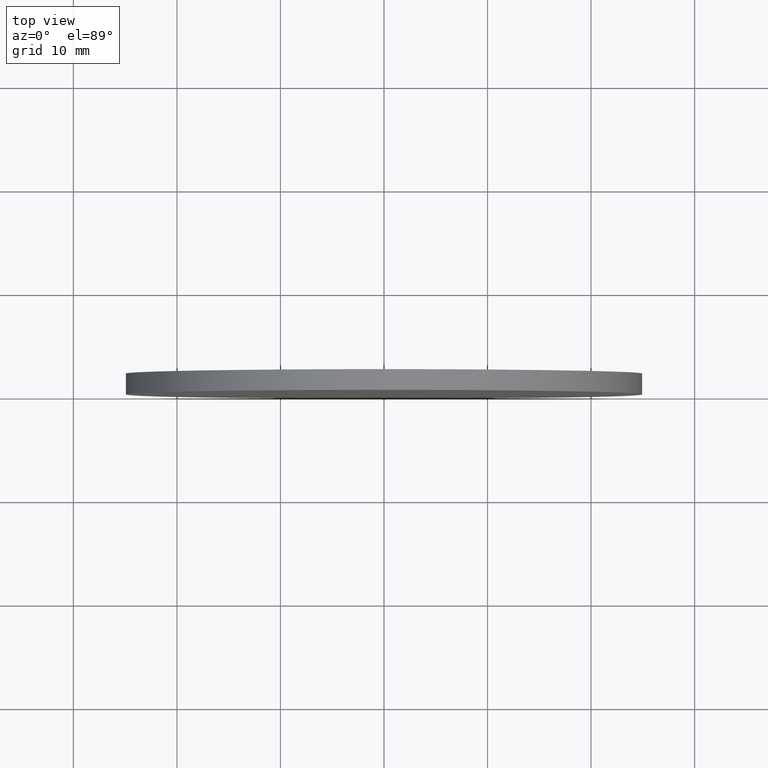
[diagram: clean part render]
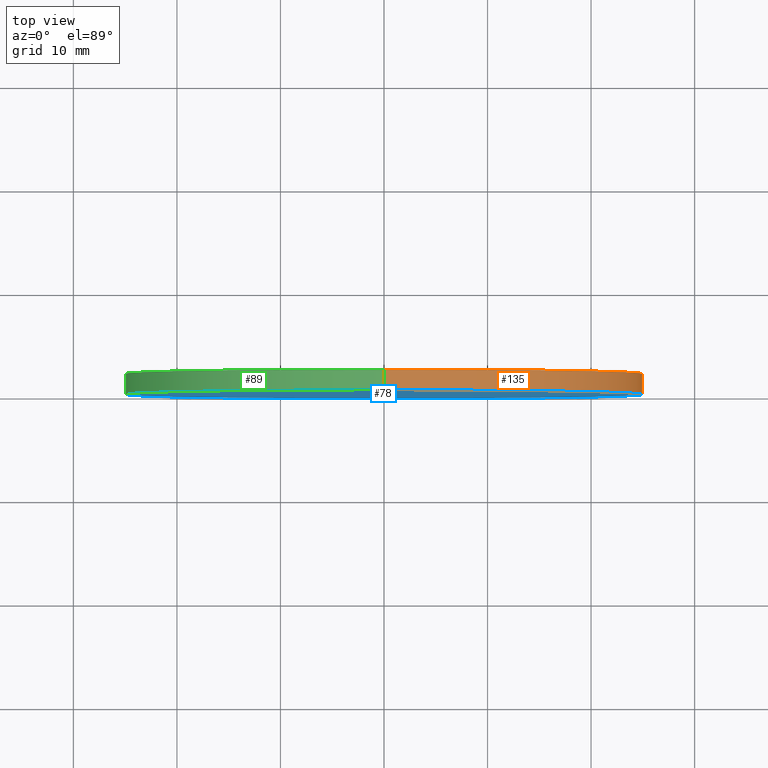
[diagram: same view with three faces highlighted in distinct colors, each labeled with its STEP entity id]
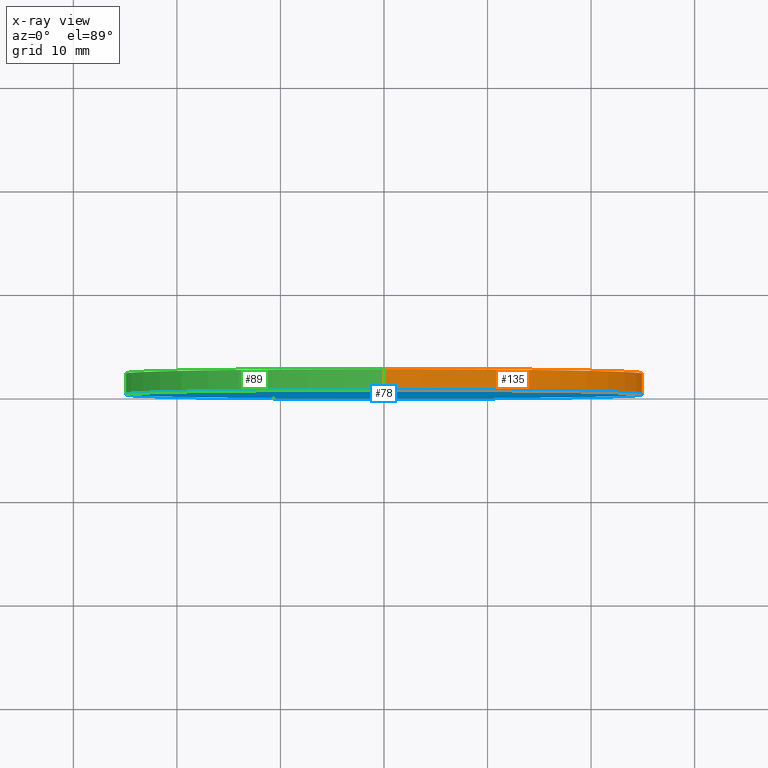
[diagram: x-ray of the same camera — body ghosted, the three highlighted faces saturated]
A machine part, top view with three faces highlighted in distinct colors.
The next image is the same camera in x-ray (body ghosted, the three faces saturated) — at least one of them is partly hidden behind the body in this view.
Their STEP definitions:

[orange] entity #135 — the highlighted cylindrical surface (partial cylindrical patch) has radius 25 mm, axis along (-0, -1, -0).
#5 = LINE ( 'NONE', #45, #126 ) ;
#8 = CARTESIAN_POINT ( 'NONE',  ( 0.0000000000000000000, 0.0000000000000000000, 0.0000000000000000000 ) ) ;
#9 = CARTESIAN_POINT ( 'NONE',  ( 0.0000000000000000000, 2.000000000000000000, -25.00000000000000000 ) ) ;
#16 = EDGE_CURVE ( 'NONE', #60, #134, #116, .T. ) ;
#18 = VERTEX_POINT ( 'NONE', #25 ) ;
#19 = CARTESIAN_POINT ( 'NONE',  ( 0.0000000000000000000, 2.000000000000000000, -25.00000000000000000 ) ) ;
#24 = EDGE_CURVE ( 'NONE', #134, #18, #75, .T. ) ;
#25 = CARTESIAN_POINT ( 'NONE',  ( 0.0000000000000000000, 0.0000000000000000000, -25.00000000000000000 ) ) ;
#26 = AXIS2_PLACEMENT_3D ( 'NONE', #71, #55, #97 ) ;
#29 = DIRECTION ( 'NONE',  ( 0.0000000000000000000, 1.000000000000000000, 0.0000000000000000000 ) ) ;
#35 = CARTESIAN_POINT ( 'NONE',  ( 3.061616997868383000E-015, 2.000000000000000000, 25.00000000000000000 ) ) ;
#36 = CARTESIAN_POINT ( 'NONE',  ( 0.0000000000000000000, 2.000000000000000000, 0.0000000000000000000 ) ) ;
#45 = CARTESIAN_POINT ( 'NONE',  ( 3.061616997868383000E-015, 2.000000000000000000, 25.00000000000000000 ) ) ;
#49 = VERTEX_POINT ( 'NONE', #80 ) ;
#51 = ORIENTED_EDGE ( 'NONE', *, *, #93, .T. ) ;
#55 = DIRECTION ( 'NONE',  ( -0.0000000000000000000, -1.000000000000000000, -0.0000000000000000000 ) ) ;
#59 = AXIS2_PLACEMENT_3D ( 'NONE', #36, #29, #90 ) ;
#60 = VERTEX_POINT ( 'NONE', #35 ) ;
#65 = DIRECTION ( 'NONE',  ( 0.0000000000000000000, 1.000000000000000000, 0.0000000000000000000 ) ) ;
#71 = CARTESIAN_POINT ( 'NONE',  ( 0.0000000000000000000, 2.000000000000000000, 0.0000000000000000000 ) ) ;
#74 = DIRECTION ( 'NONE',  ( -0.0000000000000000000, -1.000000000000000000, -0.0000000000000000000 ) ) ;
#75 = LINE ( 'NONE', #19, #129 ) ;
#80 = CARTESIAN_POINT ( 'NONE',  ( 3.061616997868383000E-015, 0.0000000000000000000, 25.00000000000000000 ) ) ;
#87 = CYLINDRICAL_SURFACE ( 'NONE', #26, 25.00000000000000000 ) ;
#90 = DIRECTION ( 'NONE',  ( 0.0000000000000000000, 0.0000000000000000000, 1.000000000000000000 ) ) ;
#93 = EDGE_CURVE ( 'NONE', #60, #49, #5, .T. ) ;
#95 = AXIS2_PLACEMENT_3D ( 'NONE', #8, #65, #132 ) ;
#97 = DIRECTION ( 'NONE',  ( 0.0000000000000000000, 0.0000000000000000000, -1.000000000000000000 ) ) ;
#102 = ORIENTED_EDGE ( 'NONE', *, *, #24, .F. ) ;
#104 = ORIENTED_EDGE ( 'NONE', *, *, #133, .T. ) ;
#110 = DIRECTION ( 'NONE',  ( -0.0000000000000000000, -1.000000000000000000, -0.0000000000000000000 ) ) ;
#113 = CIRCLE ( 'NONE', #95, 25.00000000000000000 ) ;
#116 = CIRCLE ( 'NONE', #59, 25.00000000000000000 ) ;
#117 = EDGE_LOOP ( 'NONE', ( #139, #51, #104, #102 ) ) ;
#119 = FACE_OUTER_BOUND ( 'NONE', #117, .T. ) ;
#126 = VECTOR ( 'NONE', #110, 1000.000000000000000 ) ;
#129 = VECTOR ( 'NONE', #74, 1000.000000000000000 ) ;
#132 = DIRECTION ( 'NONE',  ( 0.0000000000000000000, 0.0000000000000000000, 1.000000000000000000 ) ) ;
#133 = EDGE_CURVE ( 'NONE', #49, #18, #113, .T. ) ;
#134 = VERTEX_POINT ( 'NONE', #9 ) ;
#135 = ADVANCED_FACE ( 'NONE', ( #119 ), #87, .T. ) ;
#139 = ORIENTED_EDGE ( 'NONE', *, *, #16, .F. ) ;

[blue] entity #78 — the highlighted planar face has unit normal (0, 1, 0).
#2 = ORIENTED_EDGE ( 'NONE', *, *, #3, .F. ) ;
#3 = EDGE_CURVE ( 'NONE', #18, #49, #54, .T. ) ;
#8 = CARTESIAN_POINT ( 'NONE',  ( 0.0000000000000000000, 0.0000000000000000000, 0.0000000000000000000 ) ) ;
#10 = PLANE ( 'NONE',  #50 ) ;
#13 = EDGE_LOOP ( 'NONE', ( #2, #21 ) ) ;
#18 = VERTEX_POINT ( 'NONE', #25 ) ;
#21 = ORIENTED_EDGE ( 'NONE', *, *, #133, .F. ) ;
#25 = CARTESIAN_POINT ( 'NONE',  ( 0.0000000000000000000, 0.0000000000000000000, -25.00000000000000000 ) ) ;
#28 = DIRECTION ( 'NONE',  ( 0.0000000000000000000, 1.000000000000000000, 0.0000000000000000000 ) ) ;
#49 = VERTEX_POINT ( 'NONE', #80 ) ;
#50 = AXIS2_PLACEMENT_3D ( 'NONE', #111, #28, #88 ) ;
#54 = CIRCLE ( 'NONE', #64, 25.00000000000000000 ) ;
#56 = FACE_OUTER_BOUND ( 'NONE', #13, .T. ) ;
#64 = AXIS2_PLACEMENT_3D ( 'NONE', #81, #99, #92 ) ;
#65 = DIRECTION ( 'NONE',  ( 0.0000000000000000000, 1.000000000000000000, 0.0000000000000000000 ) ) ;
#78 = ADVANCED_FACE ( 'NONE', ( #56 ), #10, .F. ) ;
#80 = CARTESIAN_POINT ( 'NONE',  ( 3.061616997868383000E-015, 0.0000000000000000000, 25.00000000000000000 ) ) ;
#81 = CARTESIAN_POINT ( 'NONE',  ( 0.0000000000000000000, 0.0000000000000000000, 0.0000000000000000000 ) ) ;
#88 = DIRECTION ( 'NONE',  ( 0.0000000000000000000, -0.0000000000000000000, 1.000000000000000000 ) ) ;
#92 = DIRECTION ( 'NONE',  ( 0.0000000000000000000, 0.0000000000000000000, 1.000000000000000000 ) ) ;
#95 = AXIS2_PLACEMENT_3D ( 'NONE', #8, #65, #132 ) ;
#99 = DIRECTION ( 'NONE',  ( 0.0000000000000000000, 1.000000000000000000, 0.0000000000000000000 ) ) ;
#111 = CARTESIAN_POINT ( 'NONE',  ( 0.0000000000000000000, 0.0000000000000000000, 0.0000000000000000000 ) ) ;
#113 = CIRCLE ( 'NONE', #95, 25.00000000000000000 ) ;
#132 = DIRECTION ( 'NONE',  ( 0.0000000000000000000, 0.0000000000000000000, 1.000000000000000000 ) ) ;
#133 = EDGE_CURVE ( 'NONE', #49, #18, #113, .T. ) ;

[green] entity #89 — the highlighted cylindrical surface (partial cylindrical patch) has radius 25 mm, axis along (-0, -1, -0).
#3 = EDGE_CURVE ( 'NONE', #18, #49, #54, .T. ) ;
#5 = LINE ( 'NONE', #45, #126 ) ;
#9 = CARTESIAN_POINT ( 'NONE',  ( 0.0000000000000000000, 2.000000000000000000, -25.00000000000000000 ) ) ;
#17 = CARTESIAN_POINT ( 'NONE',  ( 0.0000000000000000000, 2.000000000000000000, 0.0000000000000000000 ) ) ;
#18 = VERTEX_POINT ( 'NONE', #25 ) ;
#19 = CARTESIAN_POINT ( 'NONE',  ( 0.0000000000000000000, 2.000000000000000000, -25.00000000000000000 ) ) ;
#23 = ORIENTED_EDGE ( 'NONE', *, *, #93, .F. ) ;
#24 = EDGE_CURVE ( 'NONE', #134, #18, #75, .T. ) ;
#25 = CARTESIAN_POINT ( 'NONE',  ( 0.0000000000000000000, 0.0000000000000000000, -25.00000000000000000 ) ) ;
#31 = EDGE_LOOP ( 'NONE', ( #23, #77, #33, #115 ) ) ;
#33 = ORIENTED_EDGE ( 'NONE', *, *, #24, .T. ) ;
#35 = CARTESIAN_POINT ( 'NONE',  ( 3.061616997868383000E-015, 2.000000000000000000, 25.00000000000000000 ) ) ;
#43 = AXIS2_PLACEMENT_3D ( 'NONE', #17, #98, #47 ) ;
#44 = CIRCLE ( 'NONE', #120, 25.00000000000000000 ) ;
#45 = CARTESIAN_POINT ( 'NONE',  ( 3.061616997868383000E-015, 2.000000000000000000, 25.00000000000000000 ) ) ;
#47 = DIRECTION ( 'NONE',  ( 0.0000000000000000000, 0.0000000000000000000, -1.000000000000000000 ) ) ;
#49 = VERTEX_POINT ( 'NONE', #80 ) ;
#53 = DIRECTION ( 'NONE',  ( 0.0000000000000000000, 0.0000000000000000000, 1.000000000000000000 ) ) ;
#54 = CIRCLE ( 'NONE', #64, 25.00000000000000000 ) ;
#60 = VERTEX_POINT ( 'NONE', #35 ) ;
#62 = CARTESIAN_POINT ( 'NONE',  ( 0.0000000000000000000, 2.000000000000000000, 0.0000000000000000000 ) ) ;
#64 = AXIS2_PLACEMENT_3D ( 'NONE', #81, #99, #92 ) ;
#73 = FACE_OUTER_BOUND ( 'NONE', #31, .T. ) ;
#74 = DIRECTION ( 'NONE',  ( -0.0000000000000000000, -1.000000000000000000, -0.0000000000000000000 ) ) ;
#75 = LINE ( 'NONE', #19, #129 ) ;
#77 = ORIENTED_EDGE ( 'NONE', *, *, #127, .F. ) ;
#80 = CARTESIAN_POINT ( 'NONE',  ( 3.061616997868383000E-015, 0.0000000000000000000, 25.00000000000000000 ) ) ;
#81 = CARTESIAN_POINT ( 'NONE',  ( 0.0000000000000000000, 0.0000000000000000000, 0.0000000000000000000 ) ) ;
#82 = DIRECTION ( 'NONE',  ( 0.0000000000000000000, 1.000000000000000000, 0.0000000000000000000 ) ) ;
#89 = ADVANCED_FACE ( 'NONE', ( #73 ), #106, .T. ) ;
#92 = DIRECTION ( 'NONE',  ( 0.0000000000000000000, 0.0000000000000000000, 1.000000000000000000 ) ) ;
#93 = EDGE_CURVE ( 'NONE', #60, #49, #5, .T. ) ;
#98 = DIRECTION ( 'NONE',  ( -0.0000000000000000000, -1.000000000000000000, -0.0000000000000000000 ) ) ;
#99 = DIRECTION ( 'NONE',  ( 0.0000000000000000000, 1.000000000000000000, 0.0000000000000000000 ) ) ;
#106 = CYLINDRICAL_SURFACE ( 'NONE', #43, 25.00000000000000000 ) ;
#110 = DIRECTION ( 'NONE',  ( -0.0000000000000000000, -1.000000000000000000, -0.0000000000000000000 ) ) ;
#115 = ORIENTED_EDGE ( 'NONE', *, *, #3, .T. ) ;
#120 = AXIS2_PLACEMENT_3D ( 'NONE', #62, #82, #53 ) ;
#126 = VECTOR ( 'NONE', #110, 1000.000000000000000 ) ;
#127 = EDGE_CURVE ( 'NONE', #134, #60, #44, .T. ) ;
#129 = VECTOR ( 'NONE', #74, 1000.000000000000000 ) ;
#134 = VERTEX_POINT ( 'NONE', #9 ) ;